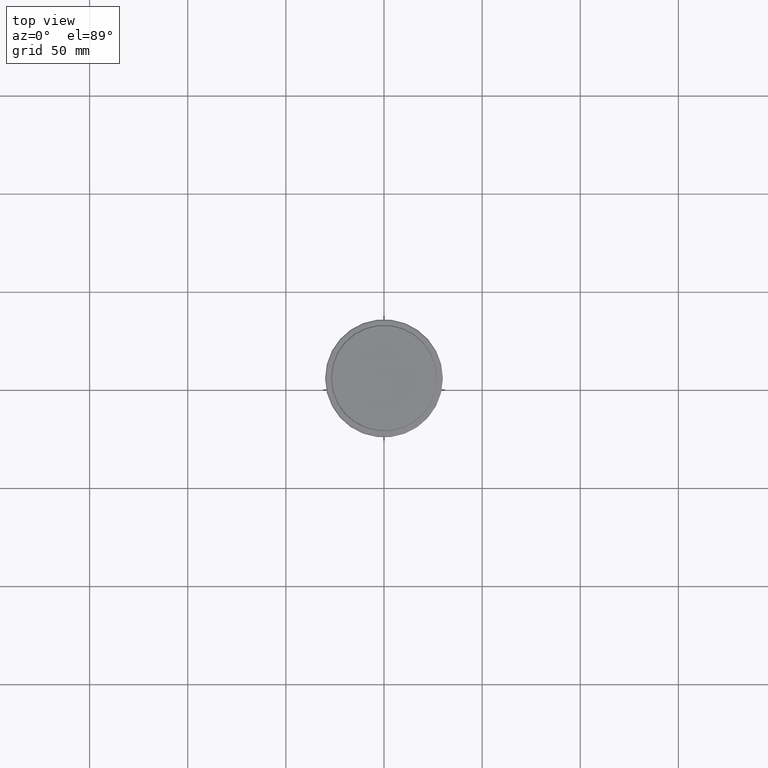
[diagram: clean part render]
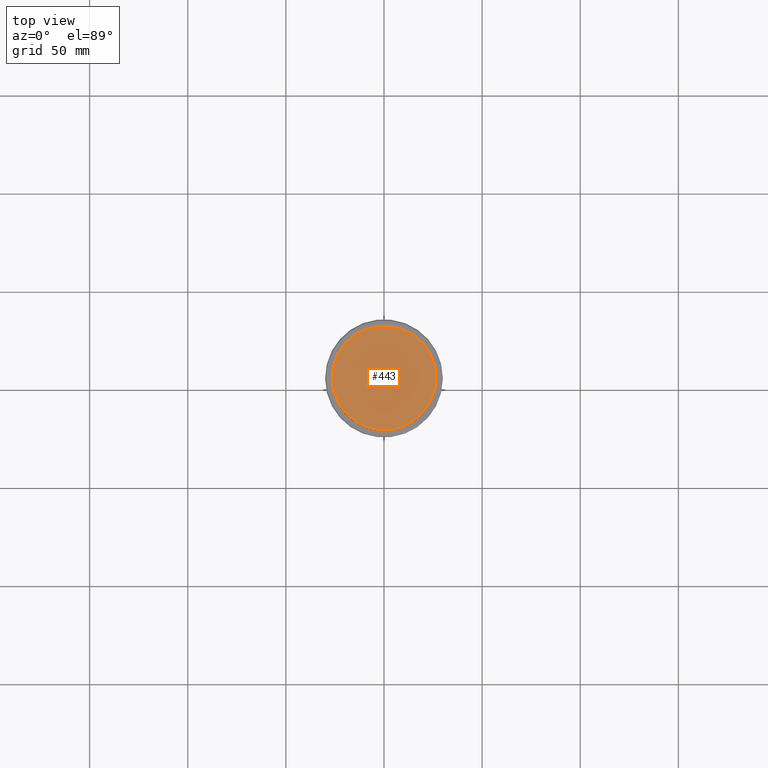
[diagram: same view with one face highlighted and labeled with its STEP entity id]
A machine part, top view. The second image highlights one B-rep face of the part: STEP entity #443.
In plain terms, the highlighted planar face has unit normal (0, -0, 1).
Its self-contained STEP definition (entity closure, byte-faithful):
#44 = DIRECTION ( 'NONE',  ( -0.000000000000000000, -0.000000000000000000, 1.000000000000000000 ) ) ;
#66 = ORIENTED_EDGE ( 'NONE', *, *, #1087, .T. ) ;
#190 = ORIENTED_EDGE ( 'NONE', *, *, #1157, .T. ) ;
#198 = CIRCLE ( 'NONE', #450, 26.49999999999996803 ) ;
#214 = CARTESIAN_POINT ( 'NONE',  ( 26.49999999999996803, 3.275930187719167580E-15, 0.000000000000000000 ) ) ;
#261 = CARTESIAN_POINT ( 'NONE',  ( -26.49999999999996803, 0.000000000000000000, 0.000000000000000000 ) ) ;
#324 = DIRECTION ( 'NONE',  ( 1.000000000000000000, 0.000000000000000000, 0.000000000000000000 ) ) ;
#395 = VERTEX_POINT ( 'NONE', #214 ) ;
#443 = ADVANCED_FACE ( 'NONE', ( #854 ), #954, .T. ) ;
#450 = AXIS2_PLACEMENT_3D ( 'NONE', #582, #44, #480 ) ;
#480 = DIRECTION ( 'NONE',  ( 1.000000000000000000, 0.000000000000000000, 0.000000000000000000 ) ) ;
#582 = CARTESIAN_POINT ( 'NONE',  ( 0.000000000000000000, 0.000000000000000000, 0.000000000000000000 ) ) ;
#751 = DIRECTION ( 'NONE',  ( 0.000000000000000000, -0.000000000000000000, 1.000000000000000000 ) ) ;
#833 = DIRECTION ( 'NONE',  ( 1.000000000000000000, 0.000000000000000000, 0.000000000000000000 ) ) ;
#854 = FACE_OUTER_BOUND ( 'NONE', #878, .T. ) ;
#878 = EDGE_LOOP ( 'NONE', ( #66, #190 ) ) ;
#954 = PLANE ( 'NONE',  #1143 ) ;
#960 = CIRCLE ( 'NONE', #1288, 26.49999999999996803 ) ;
#1055 = VERTEX_POINT ( 'NONE', #261 ) ;
#1071 = CARTESIAN_POINT ( 'NONE',  ( 0.000000000000000000, 0.000000000000000000, 0.000000000000000000 ) ) ;
#1087 = EDGE_CURVE ( 'NONE', #1055, #395, #198, .T. ) ;
#1142 = CARTESIAN_POINT ( 'NONE',  ( 0.000000000000000000, 0.000000000000000000, 0.000000000000000000 ) ) ;
#1143 = AXIS2_PLACEMENT_3D ( 'NONE', #1071, #751, #324 ) ;
#1157 = EDGE_CURVE ( 'NONE', #395, #1055, #960, .T. ) ;
#1288 = AXIS2_PLACEMENT_3D ( 'NONE', #1142, #1391, #833 ) ;
#1391 = DIRECTION ( 'NONE',  ( -0.000000000000000000, -0.000000000000000000, 1.000000000000000000 ) ) ;